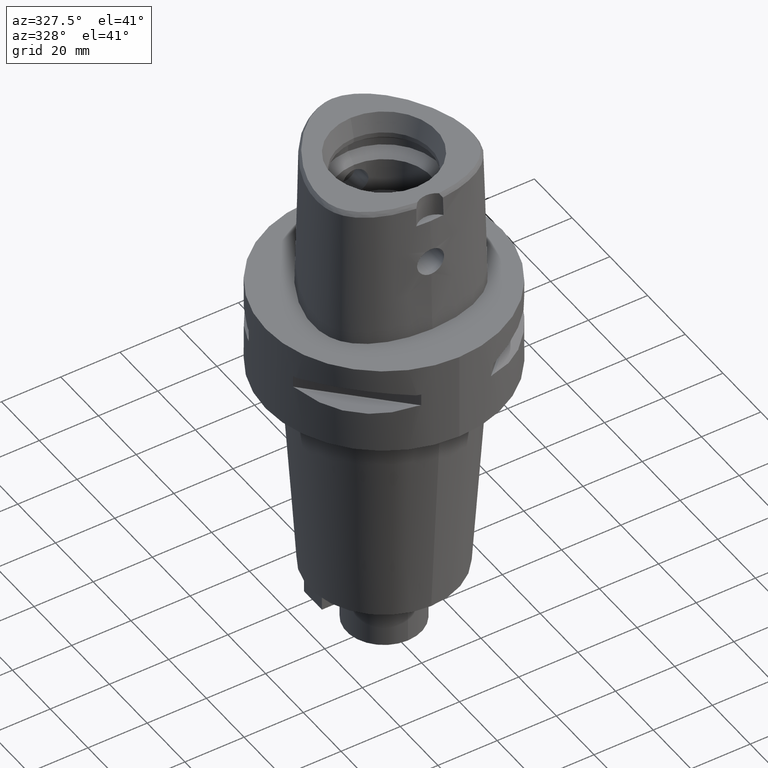
[diagram: clean part render]
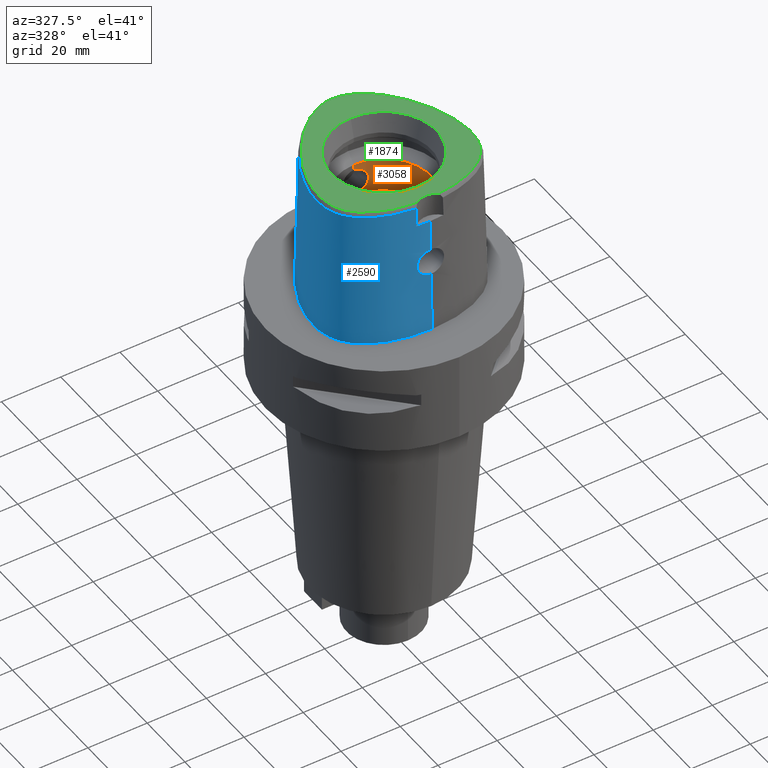
[diagram: same view with three faces highlighted in distinct colors, each labeled with its STEP entity id]
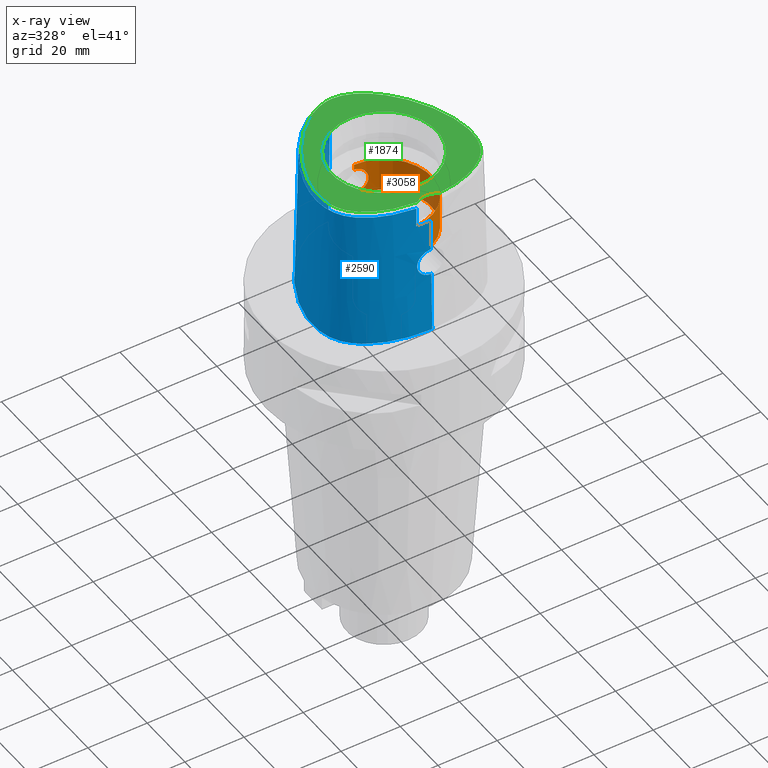
[diagram: x-ray of the same camera — body ghosted, the three highlighted faces saturated]
A machine part, auxiliary view with three faces highlighted in distinct colors.
The next image is the same camera in x-ray (body ghosted, the three faces saturated) — at least one of them is partly hidden behind the body in this view.
Their STEP definitions:

[orange] entity #3058 — the highlighted cylindrical surface (partial cylindrical patch) has radius 16 mm, axis along (0, 0, -1).
#836=CARTESIAN_POINT('',(0.E0,0.E0,2.E1));
#837=DIRECTION('',(0.E0,0.E0,-1.E0));
#838=DIRECTION('',(0.E0,1.E0,0.E0));
#839=AXIS2_PLACEMENT_3D('',#836,#837,#838);
#868=CARTESIAN_POINT('',(0.E0,1.6E1,2.045E1));
#869=CARTESIAN_POINT('',(3.988870664283E-1,1.6E1,2.045E1));
#870=CARTESIAN_POINT('',(1.170967428680E0,1.597054005409E1,2.055220601059E1));
#871=CARTESIAN_POINT('',(2.269165045145E0,1.585004967254E1,2.099597418438E1));
#872=CARTESIAN_POINT('',(3.235840392460E0,1.567764940963E1,2.172606052796E1));
#873=CARTESIAN_POINT('',(3.979931154606E0,1.550129804816E1,2.268485409254E1));
#874=CARTESIAN_POINT('',(4.449771257924E0,1.536976770899E1,2.382038264550E1));
#875=CARTESIAN_POINT('',(4.600139872242E0,1.532423623196E1,2.500306615614E1));
#876=CARTESIAN_POINT('',(4.449671501328E0,1.536974686289E1,2.617034550552E1));
#877=CARTESIAN_POINT('',(3.998263926289E0,1.549625437505E1,2.727846324912E1));
#878=CARTESIAN_POINT('',(3.274706598276E0,1.566933645876E1,2.823515726993E1));
#879=CARTESIAN_POINT('',(2.304752484980E0,1.584537923445E1,2.898659566049E1));
#880=CARTESIAN_POINT('',(1.179336180185E0,1.597044752780E1,2.944759719027E1));
#881=CARTESIAN_POINT('',(4.011752150311E-1,1.6E1,2.955E1));
#882=CARTESIAN_POINT('',(0.E0,1.6E1,2.955E1));
#887=DIRECTION('',(0.E0,0.E0,1.E0));
#888=VECTOR('',#887,1.95E0);
#889=CARTESIAN_POINT('',(0.E0,1.6E1,2.955E1));
#890=LINE('',#889,#888);
#894=CARTESIAN_POINT('',(0.E0,-1.6E1,2.955E1));
#895=CARTESIAN_POINT('',(3.988949840461E-1,-1.6E1,2.955E1));
#896=CARTESIAN_POINT('',(1.170987392246E0,-1.597053904738E1,2.944779000851E1));
#897=CARTESIAN_POINT('',(2.269201620188E0,-1.585004458749E1,2.900400791297E1));
#898=CARTESIAN_POINT('',(3.235861839035E0,-1.567764412795E1,2.827390929896E1));
#899=CARTESIAN_POINT('',(3.979906728756E0,-1.550130427707E1,2.731518700362E1));
#900=CARTESIAN_POINT('',(4.449786355208E0,-1.536976358980E1,2.617958816771E1));
#901=CARTESIAN_POINT('',(4.600141260479E0,-1.532423580536E1,2.499687162329E1));
#902=CARTESIAN_POINT('',(4.449650824034E0,-1.536975269654E1,2.382959914842E1));
#903=CARTESIAN_POINT('',(3.998275641248E0,-1.549625137392E1,2.272155873649E1));
#904=CARTESIAN_POINT('',(3.274680675105E0,-1.566934256353E1,2.176480938883E1));
#905=CARTESIAN_POINT('',(2.304714680869E0,-1.584538459831E1,2.101338521127E1));
#906=CARTESIAN_POINT('',(1.179313211587E0,-1.597044876186E1,2.055239805286E1));
#907=CARTESIAN_POINT('',(4.011661463450E-1,-1.6E1,2.045E1));
#908=CARTESIAN_POINT('',(0.E0,-1.6E1,2.045E1));
#913=DIRECTION('',(0.E0,0.E0,1.E0));
#914=VECTOR('',#913,4.5E-1);
#915=CARTESIAN_POINT('',(0.E0,1.6E1,2.E1));
#916=LINE('',#915,#914);
#953=DIRECTION('',(0.E0,0.E0,1.E0));
#954=VECTOR('',#953,1.95E0);
#955=CARTESIAN_POINT('',(0.E0,-1.6E1,2.955E1));
#956=LINE('',#955,#954);
#979=DIRECTION('',(0.E0,0.E0,1.E0));
#980=VECTOR('',#979,4.5E-1);
#981=CARTESIAN_POINT('',(0.E0,-1.6E1,2.E1));
#982=LINE('',#981,#980);
#1087=CARTESIAN_POINT('',(0.E0,0.E0,3.15E1));
#1088=DIRECTION('',(0.E0,0.E0,1.E0));
#1089=DIRECTION('',(0.E0,-1.E0,0.E0));
#1090=AXIS2_PLACEMENT_3D('',#1087,#1088,#1089);
#1806=CARTESIAN_POINT('',(0.E0,1.6E1,2.E1));
#1807=CARTESIAN_POINT('',(0.E0,-1.6E1,2.E1));
#1808=VERTEX_POINT('',#1806);
#1809=VERTEX_POINT('',#1807);
#1810=VERTEX_POINT('',#868);
#1811=VERTEX_POINT('',#882);
#1812=CARTESIAN_POINT('',(0.E0,1.6E1,3.15E1));
#1813=VERTEX_POINT('',#1812);
#1814=CARTESIAN_POINT('',(0.E0,-1.6E1,3.15E1));
#1815=VERTEX_POINT('',#1814);
#1816=CARTESIAN_POINT('',(0.E0,-1.6E1,2.955E1));
#1817=VERTEX_POINT('',#1816);
#1818=VERTEX_POINT('',#908);
#3036=CARTESIAN_POINT('',(0.E0,0.E0,5.04E1));
#3037=DIRECTION('',(0.E0,0.E0,-1.E0));
#3038=DIRECTION('',(0.E0,-1.E0,0.E0));
#3039=AXIS2_PLACEMENT_3D('',#3036,#3037,#3038);
#3040=CYLINDRICAL_SURFACE('',#3039,1.6E1);
#3042=ORIENTED_EDGE('',*,*,#3041,.T.);
#3044=ORIENTED_EDGE('',*,*,#3043,.T.);
#3046=ORIENTED_EDGE('',*,*,#3045,.F.);
#3048=ORIENTED_EDGE('',*,*,#3047,.F.);
#3050=ORIENTED_EDGE('',*,*,#3049,.T.);
#3052=ORIENTED_EDGE('',*,*,#3051,.F.);
#3053=ORIENTED_EDGE('',*,*,#3025,.F.);
#3055=ORIENTED_EDGE('',*,*,#3054,.T.);
#3056=EDGE_LOOP('',(#3042,#3044,#3046,#3048,#3050,#3052,#3053,#3055));
#3057=FACE_OUTER_BOUND('',#3056,.F.);
#840=CIRCLE('',#839,1.6E1);
#883=B_SPLINE_CURVE_WITH_KNOTS('',3,(#868,#869,#870,#871,#872,#873,#874,#875,
#876,#877,#878,#879,#880,#881,#882),.UNSPECIFIED.,.F.,.F.,(4,1,1,1,1,1,1,1,1,1,
1,1,4),(0.E0,8.333333333333E-2,1.666666666667E-1,2.5E-1,3.333333333333E-1,
4.166666666667E-1,5.E-1,5.833333333333E-1,6.666666666667E-1,7.5E-1,
8.333333333333E-1,9.166666666667E-1,1.E0),.UNSPECIFIED.);
#909=B_SPLINE_CURVE_WITH_KNOTS('',3,(#894,#895,#896,#897,#898,#899,#900,#901,
#902,#903,#904,#905,#906,#907,#908),.UNSPECIFIED.,.F.,.F.,(4,1,1,1,1,1,1,1,1,1,
1,1,4),(0.E0,8.333333333333E-2,1.666666666667E-1,2.5E-1,3.333333333333E-1,
4.166666666667E-1,5.E-1,5.833333333333E-1,6.666666666667E-1,7.5E-1,
8.333333333333E-1,9.166666666667E-1,1.E0),.UNSPECIFIED.);
#1091=CIRCLE('',#1090,1.6E1);
#3025=EDGE_CURVE('',#1808,#1809,#840,.T.);
#3041=EDGE_CURVE('',#1810,#1811,#883,.T.);
#3043=EDGE_CURVE('',#1811,#1813,#890,.T.);
#3045=EDGE_CURVE('',#1815,#1813,#1091,.T.);
#3047=EDGE_CURVE('',#1817,#1815,#956,.T.);
#3049=EDGE_CURVE('',#1817,#1818,#909,.T.);
#3051=EDGE_CURVE('',#1809,#1818,#982,.T.);
#3054=EDGE_CURVE('',#1808,#1810,#916,.T.);
#3058=ADVANCED_FACE('',(#3057),#3040,.F.);

[blue] entity #2590 — the highlighted face is a freeform B-spline surface patch.
#193=CARTESIAN_POINT('',(-4.472216406693E0,-2.420008985674E1,4.652070903171E1));
#194=CARTESIAN_POINT('',(-5.595851226123E0,-2.409252897923E1,4.652067621240E1));
#195=CARTESIAN_POINT('',(-7.709127605408E0,-2.380521148289E1,4.652073530462E1));
#196=CARTESIAN_POINT('',(-1.039967745482E1,-2.324390427828E1,4.652070770703E1));
#197=CARTESIAN_POINT('',(-1.274760297285E1,-2.258761539841E1,4.652071882042E1));
#198=CARTESIAN_POINT('',(-1.485684924845E1,-2.184000270932E1,4.652071561249E1));
#199=CARTESIAN_POINT('',(-1.677391568157E1,-2.100114541756E1,4.652071995721E1));
#200=CARTESIAN_POINT('',(-1.852653262696E1,-2.006892865979E1,4.652071673885E1));
#201=CARTESIAN_POINT('',(-2.016429285464E1,-1.900733433131E1,4.652071783644E1));
#202=CARTESIAN_POINT('',(-2.157818203473E1,-1.788262115031E1,4.652071932692E1));
#203=CARTESIAN_POINT('',(-2.274542344026E1,-1.674858982236E1,4.652072390304E1));
#204=CARTESIAN_POINT('',(-2.371754954426E1,-1.558997304237E1,4.652071092763E1));
#205=CARTESIAN_POINT('',(-2.450657345372E1,-1.442237742458E1,4.652073270247E1));
#206=CARTESIAN_POINT('',(-2.516069069338E1,-1.319268175469E1,4.652069778922E1));
#207=CARTESIAN_POINT('',(-2.571329679196E1,-1.182639873910E1,4.652072295263E1));
#208=CARTESIAN_POINT('',(-2.615353342089E1,-1.030540422956E1,4.652071491999E1));
#209=CARTESIAN_POINT('',(-2.646856837334E1,-8.593858308417E0,4.652071946748E1));
#210=CARTESIAN_POINT('',(-2.662851702724E1,-6.693236539391E0,4.652071329721E1));
#211=CARTESIAN_POINT('',(-2.661668430206E1,-4.723429006231E0,4.652072570374E1));
#212=CARTESIAN_POINT('',(-2.644230187885E1,-2.683414986849E0,4.652071529843E1));
#213=CARTESIAN_POINT('',(-2.609869400033E1,-5.323498942678E-1,
4.652071668400E1));
#214=CARTESIAN_POINT('',(-2.556728123101E1,1.765534027255E0,4.652071650846E1));
#215=CARTESIAN_POINT('',(-2.480042988130E1,4.291406930126E0,4.652071628838E1));
#216=CARTESIAN_POINT('',(-2.372426996937E1,7.123270610617E0,4.652068453771E1));
#217=CARTESIAN_POINT('',(-2.222746666349E1,1.032026372154E1,4.652072920159E1));
#218=CARTESIAN_POINT('',(-2.040057170694E1,1.353612166770E1,4.652071152556E1));
#219=CARTESIAN_POINT('',(-1.839256960075E1,1.650091718024E1,4.652071762514E1));
#220=CARTESIAN_POINT('',(-1.644058660756E1,1.895926942664E1,4.652070926641E1));
#221=CARTESIAN_POINT('',(-1.460335396485E1,2.096568365218E1,4.652072249003E1));
#222=CARTESIAN_POINT('',(-1.288298309862E1,2.260766503391E1,4.652071190114E1));
#223=CARTESIAN_POINT('',(-1.119972044616E1,2.401028545084E1,4.652072256332E1));
#224=CARTESIAN_POINT('',(-9.512800160471E0,2.522091406413E1,4.652071391096E1));
#225=CARTESIAN_POINT('',(-7.804216676796E0,2.625340754458E1,4.652072248072E1));
#226=CARTESIAN_POINT('',(-6.084193989139E0,2.709611257046E1,4.652072328414E1));
#227=CARTESIAN_POINT('',(-4.414891400579E0,2.772137915089E1,4.652071642653E1));
#228=CARTESIAN_POINT('',(-2.865851827925E0,2.813084343857E1,4.652071995024E1));
#229=CARTESIAN_POINT('',(-1.391614874036E0,2.836346870138E1,4.652068819534E1));
#230=CARTESIAN_POINT('',(-4.642183567969E-1,2.841206021535E1,4.652071719450E1));
#231=CARTESIAN_POINT('',(-1.302368180590E-11,2.841206021535E1,
4.652071719451E1));
#243=CARTESIAN_POINT('',(-4.472216406693E0,-2.420008985674E1,4.652070903171E1));
#244=CARTESIAN_POINT('',(-4.487210721186E0,-2.421685468864E1,4.579601479726E1));
#245=CARTESIAN_POINT('',(-4.516393871198E0,-2.424985511122E1,4.434671166025E1));
#246=CARTESIAN_POINT('',(-4.559960929945E0,-2.430022581201E1,4.217314625867E1));
#247=CARTESIAN_POINT('',(-4.588866880071E0,-2.433440429495E1,4.072435065553E1));
#248=CARTESIAN_POINT('',(-4.602926399294E0,-2.435121850033E1,4.E1));
#253=DIRECTION('',(1.388127457203E-9,-2.499239851702E-2,-9.996876412242E-1));
#254=VECTOR('',#253,1.045326522127E1);
#255=CARTESIAN_POINT('',(-1.451045074373E-8,-2.457504746727E1,
4.000000005214E1));
#256=LINE('',#255,#254);
#260=CARTESIAN_POINT('',(1.372734075397E-14,-2.483629963748E1,2.955E1));
#261=CARTESIAN_POINT('',(-3.966835984646E-1,-2.483629963748E1,2.955E1));
#262=CARTESIAN_POINT('',(-1.190418809773E0,-2.482887723659E1,2.944561742728E1));
#263=CARTESIAN_POINT('',(-2.300741017991E0,-2.479906243005E1,2.898605904871E1));
#264=CARTESIAN_POINT('',(-3.255789090205E0,-2.476057038817E1,2.825311794410E1));
#265=CARTESIAN_POINT('',(-3.987636326582E0,-2.472742176594E1,2.729796279280E1));
#266=CARTESIAN_POINT('',(-4.446358689829E0,-2.471345406062E1,2.618734946089E1));
#267=CARTESIAN_POINT('',(-4.602009607481E0,-2.472805014992E1,2.499856857259E1));
#268=CARTESIAN_POINT('',(-4.445601745922E0,-2.477322141726E1,2.381050642308E1));
#269=CARTESIAN_POINT('',(-3.987821795884E0,-2.484269847339E1,2.270284549258E1));
#270=CARTESIAN_POINT('',(-3.257169514981E0,-2.492348668177E1,2.174816226309E1));
#271=CARTESIAN_POINT('',(-2.300561363557E0,-2.499862191626E1,2.101354524447E1));
#272=CARTESIAN_POINT('',(-1.188130274278E0,-2.505127109848E1,2.055374615128E1));
#273=CARTESIAN_POINT('',(-3.956083647808E-1,-2.506378435149E1,2.045E1));
#274=CARTESIAN_POINT('',(-1.668783237451E-12,-2.506378435149E1,2.045E1));
#279=DIRECTION('',(-5.747509334318E-13,-2.499051295404E-2,-9.996876883619E-1));
#280=VECTOR('',#279,2.045638876829E1);
#281=CARTESIAN_POINT('',(-1.668783237451E-12,-2.506378435149E1,2.045E1));
#282=LINE('',#281,#280);
#345=CARTESIAN_POINT('',(3.426701214670E-11,2.957499999999E1,
6.798265654121E-14));
#346=CARTESIAN_POINT('',(-4.795641307591E-1,2.9575E1,6.798265654121E-14));
#347=CARTESIAN_POINT('',(-1.458686856547E0,2.952584384607E1,
-3.155086070213E-14));
#348=CARTESIAN_POINT('',(-2.980844332018E0,2.929444926410E1,0.E0));
#349=CARTESIAN_POINT('',(-4.576069813551E0,2.888874069046E1,0.E0));
#350=CARTESIAN_POINT('',(-6.256216302467E0,2.828479450283E1,0.E0));
#351=CARTESIAN_POINT('',(-8.023896467273E0,2.745722207886E1,0.E0));
#352=CARTESIAN_POINT('',(-9.893384879061E0,2.636821764963E1,0.E0));
#353=CARTESIAN_POINT('',(-1.185900388703E1,2.498258819883E1,0.E0));
#354=CARTESIAN_POINT('',(-1.391138166442E1,2.326293697393E1,0.E0));
#355=CARTESIAN_POINT('',(-1.602333775356E1,2.118146786950E1,0.E0));
#356=CARTESIAN_POINT('',(-1.814525967728E1,1.873492075803E1,0.E0));
#357=CARTESIAN_POINT('',(-2.021349798233E1,1.594561337368E1,0.E0));
#358=CARTESIAN_POINT('',(-2.213684722933E1,1.289705328406E1,0.E0));
#359=CARTESIAN_POINT('',(-2.383154562455E1,9.708128208823E0,0.E0));
#360=CARTESIAN_POINT('',(-2.522934917711E1,6.520997087494E0,0.E0));
#361=CARTESIAN_POINT('',(-2.630509435509E1,3.450975877917E0,0.E0));
#362=CARTESIAN_POINT('',(-2.706798826294E1,5.705684520087E-1,0.E0));
#363=CARTESIAN_POINT('',(-2.754570156408E1,-2.077737795594E0,0.E0));
#364=CARTESIAN_POINT('',(-2.777594044905E1,-4.488267926571E0,0.E0));
#365=CARTESIAN_POINT('',(-2.779516007480E1,-6.664671997410E0,0.E0));
#366=CARTESIAN_POINT('',(-2.763642179945E1,-8.624397099605E0,0.E0));
#367=CARTESIAN_POINT('',(-2.732851480884E1,-1.038359741701E1,0.E0));
#368=CARTESIAN_POINT('',(-2.688911185708E1,-1.197913915133E1,0.E0));
#369=CARTESIAN_POINT('',(-2.633138111082E1,-1.343010256547E1,0.E0));
#370=CARTESIAN_POINT('',(-2.564663341390E1,-1.478257262266E1,0.E0));
#371=CARTESIAN_POINT('',(-2.482428981395E1,-1.605009053598E1,0.E0));
#372=CARTESIAN_POINT('',(-2.385347260717E1,-1.725803415353E1,0.E0));
#373=CARTESIAN_POINT('',(-2.270048175783E1,-1.843472093821E1,0.E0));
#374=CARTESIAN_POINT('',(-2.134126122460E1,-1.958033955047E1,0.E0));
#375=CARTESIAN_POINT('',(-1.972986803514E1,-2.070099565217E1,0.E0));
#376=CARTESIAN_POINT('',(-1.784588433636E1,-2.177419736358E1,0.E0));
#377=CARTESIAN_POINT('',(-1.565171721385E1,-2.278402819548E1,0.E0));
#378=CARTESIAN_POINT('',(-1.312542712307E1,-2.369991680360E1,0.E0));
#379=CARTESIAN_POINT('',(-1.025458237834E1,-2.448563436185E1,0.E0));
#380=CARTESIAN_POINT('',(-7.058156327488E0,-2.509620445992E1,0.E0));
#381=CARTESIAN_POINT('',(-3.613588265661E0,-2.548421154231E1,
-3.447064639585E-14));
#382=CARTESIAN_POINT('',(-1.224071959897E0,-2.5575E1,7.427392034742E-14));
#383=CARTESIAN_POINT('',(-1.342611177667E-11,-2.5575E1,7.427392034742E-14));
#1029=DIRECTION('',(1.016233785065E-12,2.499051293976E-2,-9.996876883622E-1));
#1030=VECTOR('',#1029,4.653525069487E1);
#1031=CARTESIAN_POINT('',(-1.302368180590E-11,2.841206021535E1,
4.652071719451E1));
#1032=LINE('',#1031,#1030);
#1046=CARTESIAN_POINT('',(-1.451045074373E-8,-2.457504746727E1,
4.000000005214E1));
#1047=CARTESIAN_POINT('',(-5.124223382063E-1,-2.457504746706E1,
4.000000005214E1));
#1048=CARTESIAN_POINT('',(-1.536621703185E0,-2.455890147822E1,
3.999999997567E1));
#1049=CARTESIAN_POINT('',(-3.071957833090E0,-2.448406989332E1,
4.000000000695E1));
#1050=CARTESIAN_POINT('',(-4.092927957720E0,-2.440134255033E1,4.E1));
#1051=CARTESIAN_POINT('',(-4.602926399294E0,-2.435121850033E1,4.E1));
#1667=CARTESIAN_POINT('',(-4.602965878456E0,-2.435127227233E1,4.E1));
#1668=VERTEX_POINT('',#1667);
#1669=VERTEX_POINT('',#243);
#1670=CARTESIAN_POINT('',(-1.302368180590E-11,2.841206021535E1,
4.652071719451E1));
#1671=VERTEX_POINT('',#1670);
#1672=VERTEX_POINT('',#345);
#1673=VERTEX_POINT('',#383);
#1674=VERTEX_POINT('',#1046);
#1675=CARTESIAN_POINT('',(1.372734075387E-14,-2.483629963748E1,2.955E1));
#1676=VERTEX_POINT('',#1675);
#1677=VERTEX_POINT('',#274);
#2465=CARTESIAN_POINT('',(9.115101686250E-1,2.956851176079E1,
-9.304145092781E-1));
#2466=CARTESIAN_POINT('',(8.850788435426E-1,2.916624660154E1,1.519677031821E1));
#2467=CARTESIAN_POINT('',(8.586475184602E-1,2.876398144229E1,3.132395514570E1));
#2468=CARTESIAN_POINT('',(8.322161933778E-1,2.836171628305E1,4.745113997318E1));
#2469=CARTESIAN_POINT('',(6.077626424050E-1,2.958843421448E1,
-9.304145092781E-1));
#2470=CARTESIAN_POINT('',(5.902542481387E-1,2.918556699088E1,1.519677031821E1));
#2471=CARTESIAN_POINT('',(5.727458538724E-1,2.878269976727E1,3.132395514570E1));
#2472=CARTESIAN_POINT('',(5.552374596061E-1,2.837983254367E1,4.745113997318E1));
#2473=CARTESIAN_POINT('',(-7.475778414774E-1,2.963225228809E1,
-9.304145092781E-1));
#2474=CARTESIAN_POINT('',(-7.257524937794E-1,2.922811258313E1,
1.519677031821E1));
#2475=CARTESIAN_POINT('',(-7.039271460813E-1,2.882397287816E1,
3.132395514570E1));
#2476=CARTESIAN_POINT('',(-6.821017983833E-1,2.841983317320E1,
4.745113997318E1));
#2477=CARTESIAN_POINT('',(-3.154109046681E0,2.936302093455E1,
-9.304145092781E-1));
#2478=CARTESIAN_POINT('',(-3.067023395746E0,2.896669973576E1,1.519677031821E1));
#2479=CARTESIAN_POINT('',(-2.979937744812E0,2.857037853697E1,3.132395514570E1));
#2480=CARTESIAN_POINT('',(-2.892852093878E0,2.817405733819E1,4.745113997318E1));
#2481=CARTESIAN_POINT('',(-6.271543170828E0,2.837237220597E1,
-9.304145092781E-1));
#2482=CARTESIAN_POINT('',(-6.114741919539E0,2.799897532331E1,1.519677031821E1));
#2483=CARTESIAN_POINT('',(-5.957940668249E0,2.762557844065E1,3.132395514570E1));
#2484=CARTESIAN_POINT('',(-5.801139416960E0,2.725218155800E1,4.745113997318E1));
#2485=CARTESIAN_POINT('',(-9.316733117692E0,2.681182150709E1,
-9.304145092781E-1));
#2486=CARTESIAN_POINT('',(-9.105791459002E0,2.646675913417E1,1.519677031821E1));
#2487=CARTESIAN_POINT('',(-8.894849800311E0,2.612169676124E1,3.132395514570E1));
#2488=CARTESIAN_POINT('',(-8.683908141621E0,2.577663438831E1,4.745113997318E1));
#2489=CARTESIAN_POINT('',(-1.323332856346E1,2.406149249966E1,
-9.304145092781E-1));
#2490=CARTESIAN_POINT('',(-1.296695409132E1,2.375598708899E1,1.519677031821E1));
#2491=CARTESIAN_POINT('',(-1.270057961918E1,2.345048167832E1,3.132395514570E1));
#2492=CARTESIAN_POINT('',(-1.243420514704E1,2.314497626766E1,4.745113997318E1));
#2493=CARTESIAN_POINT('',(-1.777103258691E1,1.953703864499E1,
-9.304145092781E-1));
#2494=CARTESIAN_POINT('',(-1.745811261665E1,1.927961879848E1,1.519677031821E1));
#2495=CARTESIAN_POINT('',(-1.714519264638E1,1.902219895198E1,3.132395514570E1));
#2496=CARTESIAN_POINT('',(-1.683227267612E1,1.876477910548E1,4.745113997318E1));
#2497=CARTESIAN_POINT('',(-2.235908247838E1,1.290902243092E1,
-9.304145092781E-1));
#2498=CARTESIAN_POINT('',(-2.200846691951E1,1.270659196170E1,1.519677031821E1));
#2499=CARTESIAN_POINT('',(-2.165785136063E1,1.250416149248E1,3.132395514570E1));
#2500=CARTESIAN_POINT('',(-2.130723580175E1,1.230173102326E1,4.745113997318E1));
#2501=CARTESIAN_POINT('',(-2.523075706258E1,6.836210430875E0,
-9.304145092781E-1));
#2502=CARTESIAN_POINT('',(-2.485610464220E1,6.683875462385E0,1.519677031821E1));
#2503=CARTESIAN_POINT('',(-2.448145222182E1,6.531540493895E0,3.132395514570E1));
#2504=CARTESIAN_POINT('',(-2.410679980143E1,6.379205525406E0,4.745113997318E1));
#2505=CARTESIAN_POINT('',(-2.679474625852E1,1.906447387541E0,
-9.304145092781E-1));
#2506=CARTESIAN_POINT('',(-2.640443225110E1,1.802817670159E0,1.519677031821E1));
#2507=CARTESIAN_POINT('',(-2.601411824369E1,1.699187952776E0,3.132395514570E1));
#2508=CARTESIAN_POINT('',(-2.562380423627E1,1.595558235393E0,4.745113997318E1));
#2509=CARTESIAN_POINT('',(-2.756041892321E1,-1.762105663639E0,
-9.304145092781E-1));
#2510=CARTESIAN_POINT('',(-2.716099297664E1,-1.823107493889E0,
1.519677031821E1));
#2511=CARTESIAN_POINT('',(-2.676156703007E1,-1.884109324138E0,
3.132395514570E1));
#2512=CARTESIAN_POINT('',(-2.636214108350E1,-1.945111154388E0,
4.745113997318E1));
#2513=CARTESIAN_POINT('',(-2.787808443181E1,-5.337383714048E0,
-9.304145092781E-1));
#2514=CARTESIAN_POINT('',(-2.747379250277E1,-5.347524337218E0,
1.519677031821E1));
#2515=CARTESIAN_POINT('',(-2.706950057373E1,-5.357664960388E0,
3.132395514570E1));
#2516=CARTESIAN_POINT('',(-2.666520864468E1,-5.367805583557E0,
4.745113997318E1));
#2517=CARTESIAN_POINT('',(-2.770696775983E1,-8.754869100936E0,
-9.304145092781E-1));
#2518=CARTESIAN_POINT('',(-2.730517725553E1,-8.703986976370E0,
1.519677031821E1));
#2519=CARTESIAN_POINT('',(-2.690338675122E1,-8.653104851804E0,
3.132395514570E1));
#2520=CARTESIAN_POINT('',(-2.650159624692E1,-8.602222727239E0,
4.745113997318E1));
#2521=CARTESIAN_POINT('',(-2.712297208059E1,-1.141745865563E1,
-9.304145092781E-1));
#2522=CARTESIAN_POINT('',(-2.673375369447E1,-1.130662581230E1,
1.519677031821E1));
#2523=CARTESIAN_POINT('',(-2.634453530834E1,-1.119579296898E1,
3.132395514570E1));
#2524=CARTESIAN_POINT('',(-2.595531692222E1,-1.108496012565E1,
4.745113997318E1));
#2525=CARTESIAN_POINT('',(-2.637046814614E1,-1.340391019852E1,
-9.304145092781E-1));
#2526=CARTESIAN_POINT('',(-2.600056139766E1,-1.324168029910E1,
1.519677031821E1));
#2527=CARTESIAN_POINT('',(-2.563065464917E1,-1.307945039968E1,
3.132395514570E1));
#2528=CARTESIAN_POINT('',(-2.526074790069E1,-1.291722050026E1,
4.745113997318E1));
#2529=CARTESIAN_POINT('',(-2.565830880235E1,-1.481383149400E1,
-9.304145092781E-1));
#2530=CARTESIAN_POINT('',(-2.530843713742E1,-1.461183299384E1,
1.519677031821E1));
#2531=CARTESIAN_POINT('',(-2.495856547250E1,-1.440983449368E1,
3.132395514570E1));
#2532=CARTESIAN_POINT('',(-2.460869380757E1,-1.420783599351E1,
4.745113997318E1));
#2533=CARTESIAN_POINT('',(-2.479336081515E1,-1.613554022500E1,
-9.304145092781E-1));
#2534=CARTESIAN_POINT('',(-2.446791222487E1,-1.589630653337E1,
1.519677031821E1));
#2535=CARTESIAN_POINT('',(-2.414246363460E1,-1.565707284173E1,
3.132395514570E1));
#2536=CARTESIAN_POINT('',(-2.381701504433E1,-1.541783915009E1,
4.745113997318E1));
#2537=CARTESIAN_POINT('',(-2.344929528213E1,-1.778045352005E1,
-9.304145092781E-1));
#2538=CARTESIAN_POINT('',(-2.315870204153E1,-1.749879693291E1,
1.519677031821E1));
#2539=CARTESIAN_POINT('',(-2.286810880094E1,-1.721714034577E1,
3.132395514570E1));
#2540=CARTESIAN_POINT('',(-2.257751556034E1,-1.693548375863E1,
4.745113997318E1));
#2541=CARTESIAN_POINT('',(-2.143542293297E1,-1.961750339197E1,
-9.304145092781E-1));
#2542=CARTESIAN_POINT('',(-2.119046238450E1,-1.929498366034E1,
1.519677031821E1));
#2543=CARTESIAN_POINT('',(-2.094550183603E1,-1.897246392872E1,
3.132395514570E1));
#2544=CARTESIAN_POINT('',(-2.070054128756E1,-1.864994419710E1,
4.745113997318E1));
#2545=CARTESIAN_POINT('',(-1.856135208435E1,-2.147443746762E1,
-9.304145092781E-1));
#2546=CARTESIAN_POINT('',(-1.836798846329E1,-2.111924011219E1,
1.519677031821E1));
#2547=CARTESIAN_POINT('',(-1.817462484223E1,-2.076404275676E1,
3.132395514570E1));
#2548=CARTESIAN_POINT('',(-1.798126122117E1,-2.040884540133E1,
4.745113997318E1));
#2549=CARTESIAN_POINT('',(-1.530623779629E1,-2.298697010263E1,
-9.304145092781E-1));
#2550=CARTESIAN_POINT('',(-1.515935281678E1,-2.261055603203E1,
1.519677031821E1));
#2551=CARTESIAN_POINT('',(-1.501246783727E1,-2.223414196142E1,
3.132395514570E1));
#2552=CARTESIAN_POINT('',(-1.486558285776E1,-2.185772789081E1,
4.745113997318E1));
#2553=CARTESIAN_POINT('',(-1.174634101506E1,-2.415815461173E1,
-9.304145092781E-1));
#2554=CARTESIAN_POINT('',(-1.164093423659E1,-2.376831842518E1,
1.519677031821E1));
#2555=CARTESIAN_POINT('',(-1.153552745813E1,-2.337848223864E1,
3.132395514570E1));
#2556=CARTESIAN_POINT('',(-1.143012067966E1,-2.298864605210E1,
4.745113997318E1));
#2557=CARTESIAN_POINT('',(-6.695047936616E0,-2.526858194701E1,
-9.304145092781E-1));
#2558=CARTESIAN_POINT('',(-6.639625074925E0,-2.486795319873E1,
1.519677031821E1));
#2559=CARTESIAN_POINT('',(-6.584202213234E0,-2.446732445044E1,
3.132395514570E1));
#2560=CARTESIAN_POINT('',(-6.528779351544E0,-2.406669570216E1,
4.745113997318E1));
#2561=CARTESIAN_POINT('',(-2.393548608089E0,-2.562160468918E1,
-9.304145092781E-1));
#2562=CARTESIAN_POINT('',(-2.373852717713E0,-2.521827343832E1,
1.519677031821E1));
#2563=CARTESIAN_POINT('',(-2.354156827336E0,-2.481494218746E1,
3.132395514570E1));
#2564=CARTESIAN_POINT('',(-2.334460936960E0,-2.441161093660E1,
4.745113997318E1));
#2565=CARTESIAN_POINT('',(5.689259951320E-1,-2.559577895991E1,
-9.304145092781E-1));
#2566=CARTESIAN_POINT('',(5.642418782483E-1,-2.519264541331E1,
1.519677031821E1));
#2567=CARTESIAN_POINT('',(5.595577613646E-1,-2.478951186671E1,
3.132395514570E1));
#2568=CARTESIAN_POINT('',(5.548736444808E-1,-2.438637832011E1,
4.745113997318E1));
#2569=CARTESIAN_POINT('',(8.532670504124E-1,-2.559082387611E1,
-9.304145092781E-1));
#2570=CARTESIAN_POINT('',(8.462420186220E-1,-2.518772734666E1,
1.519677031821E1));
#2571=CARTESIAN_POINT('',(8.392169868315E-1,-2.478463081721E1,
3.132395514570E1));
#2572=CARTESIAN_POINT('',(8.321919550410E-1,-2.438153428776E1,
4.745113997318E1));
#2573=B_SPLINE_SURFACE_WITH_KNOTS('',3,3,((#2465,#2466,#2467,#2468),(#2469,
#2470,#2471,#2472),(#2473,#2474,#2475,#2476),(#2477,#2478,#2479,#2480),(#2481,
#2482,#2483,#2484),(#2485,#2486,#2487,#2488),(#2489,#2490,#2491,#2492),(#2493,
#2494,#2495,#2496),(#2497,#2498,#2499,#2500),(#2501,#2502,#2503,#2504),(#2505,
#2506,#2507,#2508),(#2509,#2510,#2511,#2512),(#2513,#2514,#2515,#2516),(#2517,
#2518,#2519,#2520),(#2521,#2522,#2523,#2524),(#2525,#2526,#2527,#2528),(#2529,
#2530,#2531,#2532),(#2533,#2534,#2535,#2536),(#2537,#2538,#2539,#2540),(#2541,
#2542,#2543,#2544),(#2545,#2546,#2547,#2548),(#2549,#2550,#2551,#2552),(#2553,
#2554,#2555,#2556),(#2557,#2558,#2559,#2560),(#2561,#2562,#2563,#2564),(#2565,
#2566,#2567,#2568),(#2569,#2570,#2571,#2572)),.UNSPECIFIED.,.F.,.F.,.F.,(4,1,1,
1,1,1,1,1,1,1,1,1,1,1,1,1,1,1,1,1,1,1,1,1,4),(4,4),(-1.204223939039E-2,0.E0,
4.166666666709E-2,8.333333333372E-2,1.250000000004E-1,1.666666666670E-1,
2.500000000003E-1,3.333333333335E-1,4.166666666669E-1,4.583333333334E-1,
5.000000000001E-1,5.416666666668E-1,5.833333333333E-1,6.25E-1,6.458333333333E-1,
6.666666666667E-1,6.875E-1,7.083333333332E-1,7.499999999999E-1,
7.916666666666E-1,8.333333333331E-1,8.749999999998E-1,9.166666666665E-1,1.E0,
1.008851807893E0),(4.663562879620E-9,9.999997621583E-1),.UNSPECIFIED.);
#2575=ORIENTED_EDGE('',*,*,#2574,.F.);
#2577=ORIENTED_EDGE('',*,*,#2576,.F.);
#2578=ORIENTED_EDGE('',*,*,#2458,.F.);
#2579=ORIENTED_EDGE('',*,*,#1887,.T.);
#2581=ORIENTED_EDGE('',*,*,#2580,.F.);
#2583=ORIENTED_EDGE('',*,*,#2582,.T.);
#2585=ORIENTED_EDGE('',*,*,#2584,.T.);
#2587=ORIENTED_EDGE('',*,*,#2586,.T.);
#2588=EDGE_LOOP('',(#2575,#2577,#2578,#2579,#2581,#2583,#2585,#2587));
#2589=FACE_OUTER_BOUND('',#2588,.F.);
#232=B_SPLINE_CURVE_WITH_KNOTS('',3,(#193,#194,#195,#196,#197,#198,#199,#200,
#201,#202,#203,#204,#205,#206,#207,#208,#209,#210,#211,#212,#213,#214,#215,#216,
#217,#218,#219,#220,#221,#222,#223,#224,#225,#226,#227,#228,#229,#230,#231),
.UNSPECIFIED.,.F.,.F.,(4,1,1,1,1,1,1,1,1,1,1,1,1,1,1,1,1,1,1,1,1,1,1,1,1,1,1,1,
1,1,1,1,1,1,1,1,4),(0.E0,2.777777777778E-2,5.555555555556E-2,8.333333333333E-2,
1.111111111111E-1,1.388888888889E-1,1.666666666667E-1,1.944444444444E-1,
2.222222222222E-1,2.5E-1,2.777777777778E-1,3.055555555556E-1,3.333333333333E-1,
3.611111111111E-1,3.888888888889E-1,4.166666666667E-1,4.444444444444E-1,
4.722222222222E-1,5.E-1,5.277777777778E-1,5.555555555556E-1,5.833333333333E-1,
6.111111111111E-1,6.388888888889E-1,6.666666666667E-1,6.944444444444E-1,
7.222222222222E-1,7.5E-1,7.777777777778E-1,8.055555555556E-1,8.333333333333E-1,
8.611111111111E-1,8.888888888889E-1,9.166666666667E-1,9.444444444444E-1,
9.722222222222E-1,1.E0),.UNSPECIFIED.);
#249=B_SPLINE_CURVE_WITH_KNOTS('',3,(#243,#244,#245,#246,#247,#248),
.UNSPECIFIED.,.F.,.F.,(4,1,1,4),(0.E0,3.333333333333E-1,6.666666666667E-1,1.E0),
.UNSPECIFIED.);
#275=B_SPLINE_CURVE_WITH_KNOTS('',3,(#260,#261,#262,#263,#264,#265,#266,#267,
#268,#269,#270,#271,#272,#273,#274),.UNSPECIFIED.,.F.,.F.,(4,1,1,1,1,1,1,1,1,1,
1,1,4),(0.E0,8.333333333333E-2,1.666666666667E-1,2.5E-1,3.333333333333E-1,
4.166666666667E-1,5.E-1,5.833333333333E-1,6.666666666667E-1,7.5E-1,
8.333333333333E-1,9.166666666667E-1,1.E0),.UNSPECIFIED.);
#384=B_SPLINE_CURVE_WITH_KNOTS('',3,(#345,#346,#347,#348,#349,#350,#351,#352,
#353,#354,#355,#356,#357,#358,#359,#360,#361,#362,#363,#364,#365,#366,#367,#368,
#369,#370,#371,#372,#373,#374,#375,#376,#377,#378,#379,#380,#381,#382,#383),
.UNSPECIFIED.,.F.,.F.,(4,1,1,1,1,1,1,1,1,1,1,1,1,1,1,1,1,1,1,1,1,1,1,1,1,1,1,1,
1,1,1,1,1,1,1,1,4),(0.E0,2.777777777778E-2,5.555555555556E-2,8.333333333333E-2,
1.111111111111E-1,1.388888888889E-1,1.666666666667E-1,1.944444444444E-1,
2.222222222222E-1,2.5E-1,2.777777777778E-1,3.055555555556E-1,3.333333333333E-1,
3.611111111111E-1,3.888888888889E-1,4.166666666667E-1,4.444444444444E-1,
4.722222222222E-1,5.E-1,5.277777777778E-1,5.555555555556E-1,5.833333333333E-1,
6.111111111111E-1,6.388888888889E-1,6.666666666667E-1,6.944444444444E-1,
7.222222222222E-1,7.5E-1,7.777777777778E-1,8.055555555556E-1,8.333333333333E-1,
8.611111111111E-1,8.888888888889E-1,9.166666666667E-1,9.444444444444E-1,
9.722222222222E-1,1.E0),.UNSPECIFIED.);
#1052=B_SPLINE_CURVE_WITH_KNOTS('',3,(#1046,#1047,#1048,#1049,#1050,#1051),
.UNSPECIFIED.,.F.,.F.,(4,1,1,4),(0.E0,3.333333333333E-1,6.666666666667E-1,1.E0),
.UNSPECIFIED.);
#1887=EDGE_CURVE('',#1669,#1668,#249,.T.);
#2458=EDGE_CURVE('',#1669,#1671,#232,.T.);
#2574=EDGE_CURVE('',#1672,#1673,#384,.T.);
#2576=EDGE_CURVE('',#1671,#1672,#1032,.T.);
#2580=EDGE_CURVE('',#1674,#1668,#1052,.T.);
#2582=EDGE_CURVE('',#1674,#1676,#256,.T.);
#2584=EDGE_CURVE('',#1676,#1677,#275,.T.);
#2586=EDGE_CURVE('',#1677,#1673,#282,.T.);
#2590=ADVANCED_FACE('',(#2589),#2573,.T.);

[green] entity #1874 — the highlighted planar face has unit normal (0, 0, 1).
#17=CARTESIAN_POINT('',(0.E0,-2.82E1,4.8E1));
#18=DIRECTION('',(0.E0,0.E0,1.E0));
#19=DIRECTION('',(6.087555377261E-1,7.933578607967E-1,0.E0));
#20=AXIS2_PLACEMENT_3D('',#17,#18,#19);
#26=CARTESIAN_POINT('',(-3.652529789307E0,-2.343985019792E1,4.8E1));
#27=CARTESIAN_POINT('',(-4.761838815579E0,-2.335211647851E1,4.8E1));
#28=CARTESIAN_POINT('',(-6.840760704268E0,-2.310540587281E1,4.8E1));
#29=CARTESIAN_POINT('',(-9.514725005575E0,-2.259849467296E1,4.8E1));
#30=CARTESIAN_POINT('',(-1.184267496289E1,-2.199572896016E1,4.8E1));
#31=CARTESIAN_POINT('',(-1.390937170404E1,-2.131238164642E1,4.8E1));
#32=CARTESIAN_POINT('',(-1.577831645022E1,-2.054913235524E1,4.8E1));
#33=CARTESIAN_POINT('',(-1.748097964631E1,-1.970486625691E1,4.8E1));
#34=CARTESIAN_POINT('',(-1.905395483254E1,-1.876207876469E1,4.8E1));
#35=CARTESIAN_POINT('',(-2.046982475242E1,-1.773033129502E1,4.8E1));
#36=CARTESIAN_POINT('',(-2.166712073447E1,-1.666619455513E1,4.8E1));
#37=CARTESIAN_POINT('',(-2.265955655585E1,-1.558876150163E1,4.8E1));
#38=CARTESIAN_POINT('',(-2.346935313673E1,-1.450618218920E1,4.8E1));
#39=CARTESIAN_POINT('',(-2.413115118890E1,-1.339852273668E1,4.8E1));
#40=CARTESIAN_POINT('',(-2.469016943E1,-1.219159570533E1,4.8E1));
#41=CARTESIAN_POINT('',(-2.515517346085E1,-1.083881620046E1,4.8E1));
#42=CARTESIAN_POINT('',(-2.551159271323E1,-9.323928544607E0,4.8E1));
#43=CARTESIAN_POINT('',(-2.574026186103E1,-7.609196649614E0,4.8E1));
#44=CARTESIAN_POINT('',(-2.581229164963E1,-5.794798826768E0,4.8E1));
#45=CARTESIAN_POINT('',(-2.573316796152E1,-3.920319683890E0,4.8E1));
#46=CARTESIAN_POINT('',(-2.550258683199E1,-1.949020218003E0,4.8E1));
#47=CARTESIAN_POINT('',(-2.510944133436E1,1.407961053731E-1,4.8E1));
#48=CARTESIAN_POINT('',(-2.452871758475E1,2.395749569315E0,4.8E1));
#49=CARTESIAN_POINT('',(-2.370657262490E1,4.894006557998E0,4.8E1));
#50=CARTESIAN_POINT('',(-2.256917375592E1,7.694081716222E0,4.8E1));
#51=CARTESIAN_POINT('',(-2.103446438987E1,1.079624832546E1,4.8E1));
#52=CARTESIAN_POINT('',(-1.919825173750E1,1.387807023119E1,4.8E1));
#53=CARTESIAN_POINT('',(-1.727000834200E1,1.661088115565E1,4.8E1));
#54=CARTESIAN_POINT('',(-1.544027037531E1,1.884375795277E1,4.8E1));
#55=CARTESIAN_POINT('',(-1.371076483279E1,2.068551186705E1,4.8E1));
#56=CARTESIAN_POINT('',(-1.209059996970E1,2.219923339847E1,4.8E1));
#57=CARTESIAN_POINT('',(-1.049399289312E1,2.350491471490E1,4.8E1));
#58=CARTESIAN_POINT('',(-8.899852052233E0,2.462900007329E1,4.8E1));
#59=CARTESIAN_POINT('',(-7.301048228848E0,2.558044407748E1,4.8E1));
#60=CARTESIAN_POINT('',(-5.702504414817E0,2.635494695078E1,4.8E1));
#61=CARTESIAN_POINT('',(-4.146461693455E0,2.693510889688E1,4.8E1));
#62=CARTESIAN_POINT('',(-2.684256525819E0,2.732014670590E1,4.8E1));
#63=CARTESIAN_POINT('',(-1.315256919676E0,2.753666440245E1,4.8E1));
#64=CARTESIAN_POINT('',(-4.317311400103E-1,2.758331912251E1,4.8E1));
#65=CARTESIAN_POINT('',(-2.553408000999E-11,2.758331912251E1,4.8E1));
#70=CARTESIAN_POINT('',(-2.553408000999E-11,2.758331912251E1,4.8E1));
#71=CARTESIAN_POINT('',(4.308199591757E-1,2.758331912251E1,4.8E1));
#72=CARTESIAN_POINT('',(1.312581836386E0,2.753695819930E1,4.8E1));
#73=CARTESIAN_POINT('',(2.682052013070E0,2.732050191949E1,4.8E1));
#74=CARTESIAN_POINT('',(4.139025301734E0,2.693741277961E1,4.8E1));
#75=CARTESIAN_POINT('',(5.702132662746E0,2.635570228205E1,4.8E1));
#76=CARTESIAN_POINT('',(7.314111567124E0,2.557334069959E1,4.8E1));
#77=CARTESIAN_POINT('',(8.899897127761E0,2.462860894234E1,4.8E1));
#78=CARTESIAN_POINT('',(1.049350346487E1,2.350529025779E1,4.8E1));
#79=CARTESIAN_POINT('',(1.208714782739E1,2.220220708573E1,4.8E1));
#80=CARTESIAN_POINT('',(1.370807430618E1,2.068813656024E1,4.8E1));
#81=CARTESIAN_POINT('',(1.543422688583E1,1.885056713304E1,4.8E1));
#82=CARTESIAN_POINT('',(1.726772707219E1,1.661439195704E1,4.8E1));
#83=CARTESIAN_POINT('',(1.919908151861E1,1.387615070263E1,4.8E1));
#84=CARTESIAN_POINT('',(2.102577481567E1,1.081223261475E1,4.8E1));
#85=CARTESIAN_POINT('',(2.257155986932E1,7.689909778679E0,4.8E1));
#86=CARTESIAN_POINT('',(2.370836484248E1,4.888857081560E0,4.8E1));
#87=CARTESIAN_POINT('',(2.453018117142E1,2.390728156132E0,4.8E1));
#88=CARTESIAN_POINT('',(2.511007617668E1,1.379620702220E-1,4.8E1));
#89=CARTESIAN_POINT('',(2.550360072510E1,-1.955045901456E0,4.8E1));
#90=CARTESIAN_POINT('',(2.573370153040E1,-3.927409804008E0,4.8E1));
#91=CARTESIAN_POINT('',(2.581232238187E1,-5.799977111255E0,4.8E1));
#92=CARTESIAN_POINT('',(2.573966879691E1,-7.615151613845E0,4.8E1));
#93=CARTESIAN_POINT('',(2.551132514208E1,-9.325599270871E0,4.8E1));
#94=CARTESIAN_POINT('',(2.515342956191E1,-1.084492771808E1,4.8E1));
#95=CARTESIAN_POINT('',(2.468972595030E1,-1.219232098666E1,4.8E1));
#96=CARTESIAN_POINT('',(2.413025494716E1,-1.340053413374E1,4.8E1));
#97=CARTESIAN_POINT('',(2.346597589741E1,-1.451144789545E1,4.8E1));
#98=CARTESIAN_POINT('',(2.265398450606E1,-1.559540719476E1,4.8E1));
#99=CARTESIAN_POINT('',(2.166328740391E1,-1.666968978043E1,4.8E1));
#100=CARTESIAN_POINT('',(2.046665217620E1,-1.773324176249E1,4.8E1));
#101=CARTESIAN_POINT('',(1.903871263259E1,-1.877242211813E1,4.8E1));
#102=CARTESIAN_POINT('',(1.746616294721E1,-1.971268165060E1,4.8E1));
#103=CARTESIAN_POINT('',(1.576783714836E1,-2.055384398428E1,4.8E1));
#104=CARTESIAN_POINT('',(1.389651508096E1,-2.131702749288E1,4.8E1));
#105=CARTESIAN_POINT('',(1.183770415169E1,-2.199699532051E1,4.8E1));
#106=CARTESIAN_POINT('',(9.512960590606E0,-2.259887796156E1,4.8E1));
#107=CARTESIAN_POINT('',(6.838891179295E0,-2.310569037846E1,4.8E1));
#108=CARTESIAN_POINT('',(4.761191900107E0,-2.335214347967E1,4.8E1));
#109=CARTESIAN_POINT('',(3.652533226355E0,-2.343985283522E1,4.8E1));
#114=CARTESIAN_POINT('',(0.E0,0.E0,4.8E1));
#115=DIRECTION('',(0.E0,0.E0,1.E0));
#116=DIRECTION('',(0.E0,1.E0,0.E0));
#117=AXIS2_PLACEMENT_3D('',#114,#115,#116);
#122=CARTESIAN_POINT('',(0.E0,0.E0,4.8E1));
#123=DIRECTION('',(0.E0,0.E0,1.E0));
#124=DIRECTION('',(0.E0,-1.E0,0.E0));
#125=AXIS2_PLACEMENT_3D('',#122,#123,#124);
#1656=CARTESIAN_POINT('',(3.652533226356E0,-2.343985283522E1,4.8E1));
#1657=CARTESIAN_POINT('',(-3.652529789305E0,-2.343985019792E1,4.8E1));
#1658=VERTEX_POINT('',#1656);
#1659=VERTEX_POINT('',#1657);
#1660=VERTEX_POINT('',#65);
#1661=CARTESIAN_POINT('',(0.E0,1.771487483156E1,4.8E1));
#1662=CARTESIAN_POINT('',(0.E0,-1.771487483156E1,4.8E1));
#1663=VERTEX_POINT('',#1661);
#1664=VERTEX_POINT('',#1662);
#1855=CARTESIAN_POINT('',(0.E0,0.E0,4.8E1));
#1856=DIRECTION('',(0.E0,0.E0,1.E0));
#1857=DIRECTION('',(0.E0,1.E0,0.E0));
#1858=AXIS2_PLACEMENT_3D('',#1855,#1856,#1857);
#1859=PLANE('',#1858);
#1861=ORIENTED_EDGE('',*,*,#1860,.T.);
#1863=ORIENTED_EDGE('',*,*,#1862,.T.);
#1865=ORIENTED_EDGE('',*,*,#1864,.T.);
#1866=EDGE_LOOP('',(#1861,#1863,#1865));
#1867=FACE_OUTER_BOUND('',#1866,.F.);
#1869=ORIENTED_EDGE('',*,*,#1868,.T.);
#1871=ORIENTED_EDGE('',*,*,#1870,.T.);
#1872=EDGE_LOOP('',(#1869,#1871));
#1873=FACE_BOUND('',#1872,.F.);
#21=CIRCLE('',#20,6.E0);
#66=B_SPLINE_CURVE_WITH_KNOTS('',3,(#26,#27,#28,#29,#30,#31,#32,#33,#34,#35,#36,
#37,#38,#39,#40,#41,#42,#43,#44,#45,#46,#47,#48,#49,#50,#51,#52,#53,#54,#55,#56,
#57,#58,#59,#60,#61,#62,#63,#64,#65),.UNSPECIFIED.,.F.,.F.,(4,1,1,1,1,1,1,1,1,1,
1,1,1,1,1,1,1,1,1,1,1,1,1,1,1,1,1,1,1,1,1,1,1,1,1,1,1,4),(0.E0,
2.702702702703E-2,5.405405405405E-2,8.108108108108E-2,1.081081081081E-1,
1.351351351351E-1,1.621621621622E-1,1.891891891892E-1,2.162162162162E-1,
2.432432432432E-1,2.702702702703E-1,2.972972972973E-1,3.243243243243E-1,
3.513513513514E-1,3.783783783784E-1,4.054054054054E-1,4.324324324324E-1,
4.594594594595E-1,4.864864864865E-1,5.135135135135E-1,5.405405405405E-1,
5.675675675676E-1,5.945945945946E-1,6.216216216216E-1,6.486486486486E-1,
6.756756756757E-1,7.027027027027E-1,7.297297297297E-1,7.567567567568E-1,
7.837837837838E-1,8.108108108108E-1,8.378378378378E-1,8.648648648649E-1,
8.918918918919E-1,9.189189189189E-1,9.459459459459E-1,9.729729729730E-1,1.E0),
.UNSPECIFIED.);
#110=B_SPLINE_CURVE_WITH_KNOTS('',3,(#70,#71,#72,#73,#74,#75,#76,#77,#78,#79,
#80,#81,#82,#83,#84,#85,#86,#87,#88,#89,#90,#91,#92,#93,#94,#95,#96,#97,#98,#99,
#100,#101,#102,#103,#104,#105,#106,#107,#108,#109),.UNSPECIFIED.,.F.,.F.,(4,1,1,
1,1,1,1,1,1,1,1,1,1,1,1,1,1,1,1,1,1,1,1,1,1,1,1,1,1,1,1,1,1,1,1,1,1,4),(0.E0,
2.702702702703E-2,5.405405405405E-2,8.108108108108E-2,1.081081081081E-1,
1.351351351351E-1,1.621621621622E-1,1.891891891892E-1,2.162162162162E-1,
2.432432432432E-1,2.702702702703E-1,2.972972972973E-1,3.243243243243E-1,
3.513513513514E-1,3.783783783784E-1,4.054054054054E-1,4.324324324324E-1,
4.594594594595E-1,4.864864864865E-1,5.135135135135E-1,5.405405405405E-1,
5.675675675676E-1,5.945945945946E-1,6.216216216216E-1,6.486486486486E-1,
6.756756756757E-1,7.027027027027E-1,7.297297297297E-1,7.567567567568E-1,
7.837837837838E-1,8.108108108108E-1,8.378378378378E-1,8.648648648649E-1,
8.918918918919E-1,9.189189189189E-1,9.459459459459E-1,9.729729729730E-1,1.E0),
.UNSPECIFIED.);
#118=CIRCLE('',#117,1.771487483156E1);
#126=CIRCLE('',#125,1.771487483156E1);
#1860=EDGE_CURVE('',#1658,#1659,#21,.T.);
#1862=EDGE_CURVE('',#1659,#1660,#66,.T.);
#1864=EDGE_CURVE('',#1660,#1658,#110,.T.);
#1868=EDGE_CURVE('',#1663,#1664,#118,.T.);
#1870=EDGE_CURVE('',#1664,#1663,#126,.T.);
#1874=ADVANCED_FACE('',(#1867,#1873),#1859,.T.);